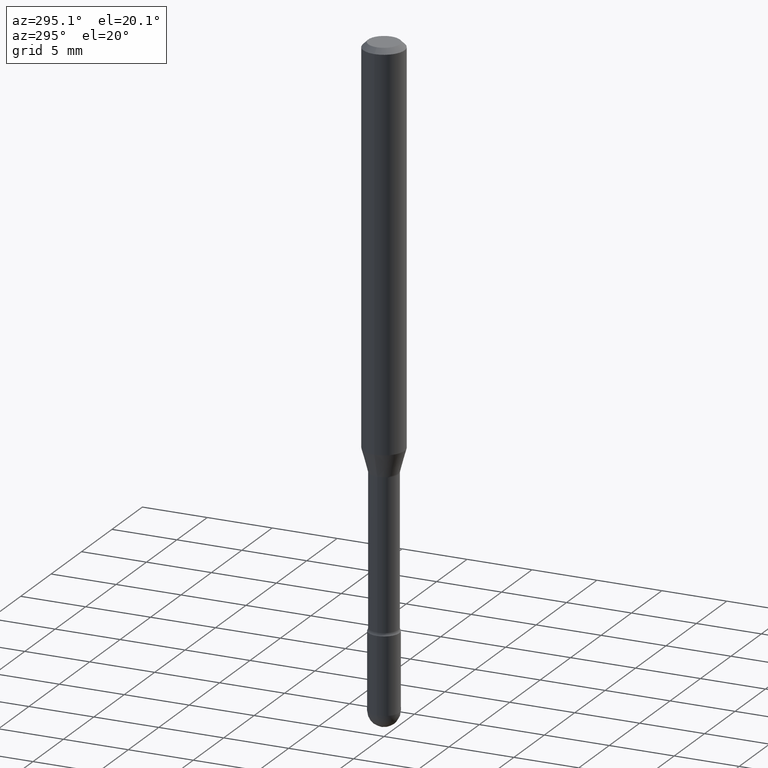
[diagram: clean part render]
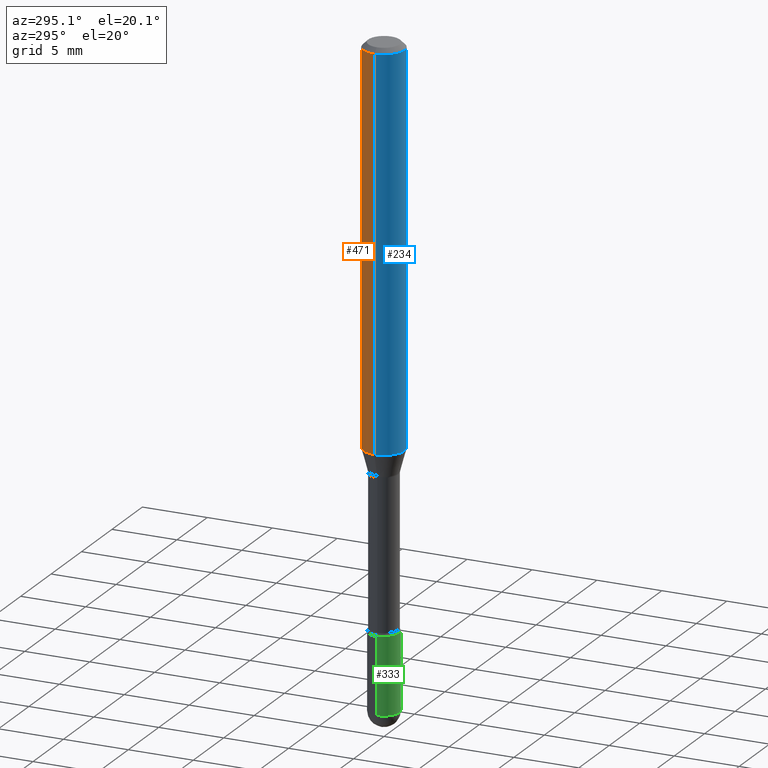
[diagram: same view with three faces highlighted in distinct colors, each labeled with its STEP entity id]
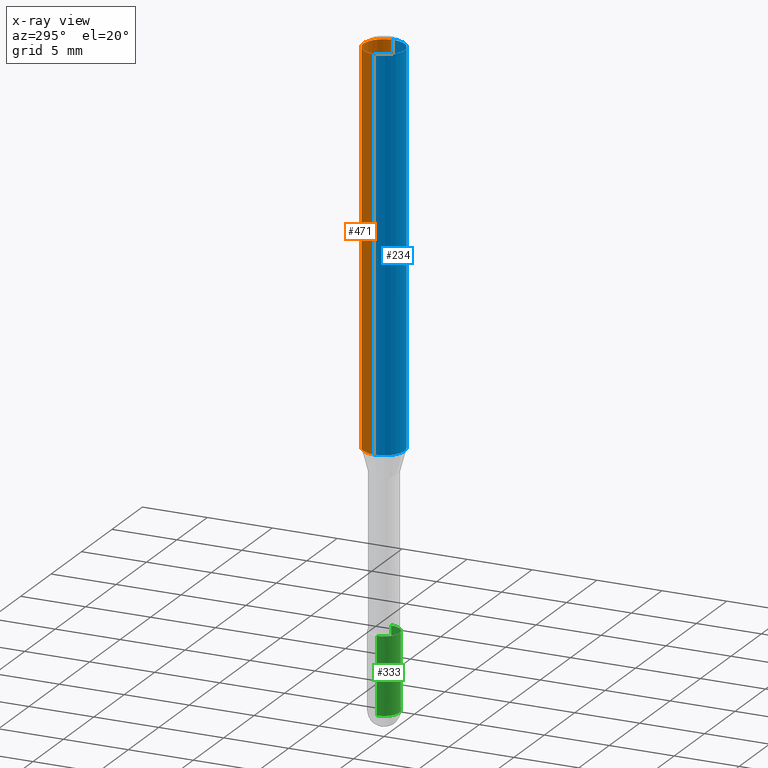
[diagram: x-ray of the same camera — body ghosted, the three highlighted faces saturated]
A machine part, auxiliary view with three faces highlighted in distinct colors.
The next image is the same camera in x-ray (body ghosted, the three faces saturated) — at least one of them is partly hidden behind the body in this view.
Their STEP definitions:

[orange] entity #471 — the highlighted cylindrical surface (edge-blend (fillet) strip) has radius 1.5875 mm, axis along (-0, 0, 1).
#21 = DIRECTION ( 'NONE',  ( -2.445468806185136597E-29, 3.491481338843145583E-15, 1.000000000000000000 ) ) ;
#24 = CARTESIAN_POINT ( 'NONE',  ( -0.06250000000000000000, -3.696240099632393448E-15, -1.185837444817705144 ) ) ;
#37 = CARTESIAN_POINT ( 'NONE',  ( 0.06250000000000000000, -4.888073874380391431E-16, -0.01500000000000008271 ) ) ;
#50 = FACE_OUTER_BOUND ( 'NONE', #131, .T. ) ;
#57 = CARTESIAN_POINT ( 'NONE',  ( 3.668203209277725232E-31, -5.237222008264747365E-17, -0.01500000000000008271 ) ) ;
#59 = CARTESIAN_POINT ( 'NONE',  ( -0.06250000000000000000, 4.440892098500642925E-16, 4.780733988912429571E-16 ) ) ;
#60 = VECTOR ( 'NONE', #260, 39.37007874015748143 ) ;
#94 = VERTEX_POINT ( 'NONE', #544 ) ;
#95 = DIRECTION ( 'NONE',  ( -2.445468806185136597E-29, 3.491481338843145583E-15, 1.000000000000000000 ) ) ;
#100 = ORIENTED_EDGE ( 'NONE', *, *, #314, .T. ) ;
#129 = DIRECTION ( 'NONE',  ( -2.445468806185136597E-29, 3.491481338843145583E-15, 1.000000000000000000 ) ) ;
#131 = EDGE_LOOP ( 'NONE', ( #167, #100, #221, #486 ) ) ;
#159 = AXIS2_PLACEMENT_3D ( 'NONE', #526, #129, #351 ) ;
#167 = ORIENTED_EDGE ( 'NONE', *, *, #331, .T. ) ;
#199 = CARTESIAN_POINT ( 'NONE',  ( 0.06250000000000000000, -4.364351673553899931E-16, 4.780733988912490708E-16 ) ) ;
#221 = ORIENTED_EDGE ( 'NONE', *, *, #457, .F. ) ;
#240 = DIRECTION ( 'NONE',  ( -2.445468806185136877E-29, 3.491481338843145188E-15, 1.000000000000000000 ) ) ;
#242 = AXIS2_PLACEMENT_3D ( 'NONE', #57, #21, #490 ) ;
#259 = VERTEX_POINT ( 'NONE', #37 ) ;
#260 = DIRECTION ( 'NONE',  ( -2.445468806185136877E-29, 3.491481338843145188E-15, 1.000000000000000000 ) ) ;
#262 = DIRECTION ( 'NONE',  ( 1.000000000000000000, -6.982962677686266711E-15, 4.852736867747366207E-29 ) ) ;
#314 = EDGE_CURVE ( 'NONE', #398, #94, #448, .T. ) ;
#331 = EDGE_CURVE ( 'NONE', #368, #398, #411, .T. ) ;
#345 = EDGE_CURVE ( 'NONE', #368, #259, #365, .T. ) ;
#351 = DIRECTION ( 'NONE',  ( 1.000000000000000000, -6.982962677686262766E-15, 0.000000000000000000 ) ) ;
#365 = LINE ( 'NONE', #199, #454 ) ;
#368 = VERTEX_POINT ( 'NONE', #504 ) ;
#398 = VERTEX_POINT ( 'NONE', #24 ) ;
#409 = CYLINDRICAL_SURFACE ( 'NONE', #488, 0.06250000000000000000 ) ;
#411 = CIRCLE ( 'NONE', #159, 0.06250000000000000000 ) ;
#448 = LINE ( 'NONE', #59, #60 ) ;
#454 = VECTOR ( 'NONE', #240, 39.37007874015748143 ) ;
#457 = EDGE_CURVE ( 'NONE', #259, #94, #468, .T. ) ;
#468 = CIRCLE ( 'NONE', #242, 0.06250000000000000000 ) ;
#471 = ADVANCED_FACE ( 'NONE', ( #50 ), #409, .T. ) ;
#481 = CARTESIAN_POINT ( 'NONE',  ( -1.169113584055446105E-44, 1.669184350826100908E-30, 4.780733988912460139E-16 ) ) ;
#486 = ORIENTED_EDGE ( 'NONE', *, *, #345, .F. ) ;
#488 = AXIS2_PLACEMENT_3D ( 'NONE', #481, #95, #262 ) ;
#490 = DIRECTION ( 'NONE',  ( 1.000000000000000000, -6.982962677686266711E-15, 0.000000000000000000 ) ) ;
#504 = CARTESIAN_POINT ( 'NONE',  ( 0.06250000000000000000, -4.576764476837847734E-15, -1.185837444817705144 ) ) ;
#526 = CARTESIAN_POINT ( 'NONE',  ( 2.899928480507986581E-29, -4.140329309482456065E-15, -1.185837444817705144 ) ) ;
#544 = CARTESIAN_POINT ( 'NONE',  ( -0.06250000000000000000, -1.652261554932489547E-15, -0.01500000000000008271 ) ) ;

[blue] entity #234 — the highlighted cylindrical surface (edge-blend (fillet) strip) has radius 1.5875 mm, axis along (-0, 0, 1).
#12 = DIRECTION ( 'NONE',  ( -2.445468806185136597E-29, 3.491481338843145583E-15, 1.000000000000000000 ) ) ;
#24 = CARTESIAN_POINT ( 'NONE',  ( -0.06250000000000000000, -3.696240099632393448E-15, -1.185837444817705144 ) ) ;
#37 = CARTESIAN_POINT ( 'NONE',  ( 0.06250000000000000000, -4.888073874380391431E-16, -0.01500000000000008271 ) ) ;
#59 = CARTESIAN_POINT ( 'NONE',  ( -0.06250000000000000000, 4.440892098500642925E-16, 4.780733988912429571E-16 ) ) ;
#60 = VECTOR ( 'NONE', #260, 39.37007874015748143 ) ;
#81 = CYLINDRICAL_SURFACE ( 'NONE', #215, 0.06250000000000000000 ) ;
#82 = EDGE_LOOP ( 'NONE', ( #236, #220, #566, #422 ) ) ;
#94 = VERTEX_POINT ( 'NONE', #544 ) ;
#108 = DIRECTION ( 'NONE',  ( -2.445468806185136597E-29, 3.491481338843145583E-15, 1.000000000000000000 ) ) ;
#119 = CARTESIAN_POINT ( 'NONE',  ( -1.169113584055446105E-44, 1.669184350826100908E-30, 4.780733988912460139E-16 ) ) ;
#128 = CIRCLE ( 'NONE', #347, 0.06250000000000000000 ) ;
#155 = DIRECTION ( 'NONE',  ( 1.000000000000000000, -6.982962677686262766E-15, 0.000000000000000000 ) ) ;
#182 = DIRECTION ( 'NONE',  ( 1.000000000000000000, -6.982962677686266711E-15, 0.000000000000000000 ) ) ;
#199 = CARTESIAN_POINT ( 'NONE',  ( 0.06250000000000000000, -4.364351673553899931E-16, 4.780733988912490708E-16 ) ) ;
#215 = AXIS2_PLACEMENT_3D ( 'NONE', #119, #293, #469 ) ;
#220 = ORIENTED_EDGE ( 'NONE', *, *, #354, .T. ) ;
#234 = ADVANCED_FACE ( 'NONE', ( #507 ), #81, .T. ) ;
#236 = ORIENTED_EDGE ( 'NONE', *, *, #314, .F. ) ;
#240 = DIRECTION ( 'NONE',  ( -2.445468806185136877E-29, 3.491481338843145188E-15, 1.000000000000000000 ) ) ;
#259 = VERTEX_POINT ( 'NONE', #37 ) ;
#260 = DIRECTION ( 'NONE',  ( -2.445468806185136877E-29, 3.491481338843145188E-15, 1.000000000000000000 ) ) ;
#293 = DIRECTION ( 'NONE',  ( -2.445468806185136597E-29, 3.491481338843145583E-15, 1.000000000000000000 ) ) ;
#314 = EDGE_CURVE ( 'NONE', #398, #94, #448, .T. ) ;
#332 = EDGE_CURVE ( 'NONE', #94, #259, #128, .T. ) ;
#341 = AXIS2_PLACEMENT_3D ( 'NONE', #543, #108, #155 ) ;
#345 = EDGE_CURVE ( 'NONE', #368, #259, #365, .T. ) ;
#347 = AXIS2_PLACEMENT_3D ( 'NONE', #407, #12, #182 ) ;
#354 = EDGE_CURVE ( 'NONE', #398, #368, #356, .T. ) ;
#356 = CIRCLE ( 'NONE', #341, 0.06250000000000000000 ) ;
#365 = LINE ( 'NONE', #199, #454 ) ;
#368 = VERTEX_POINT ( 'NONE', #504 ) ;
#398 = VERTEX_POINT ( 'NONE', #24 ) ;
#407 = CARTESIAN_POINT ( 'NONE',  ( 3.668203209277725232E-31, -5.237222008264747365E-17, -0.01500000000000008271 ) ) ;
#422 = ORIENTED_EDGE ( 'NONE', *, *, #332, .F. ) ;
#448 = LINE ( 'NONE', #59, #60 ) ;
#454 = VECTOR ( 'NONE', #240, 39.37007874015748143 ) ;
#469 = DIRECTION ( 'NONE',  ( 1.000000000000000000, -6.982962677686266711E-15, 4.852736867747366207E-29 ) ) ;
#504 = CARTESIAN_POINT ( 'NONE',  ( 0.06250000000000000000, -4.576764476837847734E-15, -1.185837444817705144 ) ) ;
#507 = FACE_OUTER_BOUND ( 'NONE', #82, .T. ) ;
#543 = CARTESIAN_POINT ( 'NONE',  ( 2.899928480507986581E-29, -4.140329309482456065E-15, -1.185837444817705144 ) ) ;
#544 = CARTESIAN_POINT ( 'NONE',  ( -0.06250000000000000000, -1.652261554932489547E-15, -0.01500000000000008271 ) ) ;
#566 = ORIENTED_EDGE ( 'NONE', *, *, #345, .T. ) ;

[green] entity #333 — the highlighted cylindrical surface (edge-blend (fillet) strip) has radius 1.1811 mm, axis along (-0, 0, 1).
#17 = VECTOR ( 'NONE', #213, 39.37007874015748143 ) ;
#30 = CARTESIAN_POINT ( 'NONE',  ( -0.04649999999999999967, -6.084321717661122786E-15, -1.721000000000000085 ) ) ;
#41 = LINE ( 'NONE', #115, #17 ) ;
#45 = CARTESIAN_POINT ( 'NONE',  ( 4.777223312882664517E-29, -6.820608795430085022E-15, -1.953500000000000014 ) ) ;
#46 = ORIENTED_EDGE ( 'NONE', *, *, #134, .T. ) ;
#78 = DIRECTION ( 'NONE',  ( -2.445468806185136597E-29, 3.491481338843145583E-15, 1.000000000000000000 ) ) ;
#86 = DIRECTION ( 'NONE',  ( 1.000000000000000000, -6.982962677686260400E-15, 0.000000000000000000 ) ) ;
#91 = CIRCLE ( 'NONE', #506, 0.04649999999999999967 ) ;
#109 = CIRCLE ( 'NONE', #370, 0.04649999999999999967 ) ;
#115 = CARTESIAN_POINT ( 'NONE',  ( 0.04649999999999999967, -3.247077645124114474E-16, 2.267422200745110326E-30 ) ) ;
#122 = CARTESIAN_POINT ( 'NONE',  ( 4.777223312882664517E-29, -6.820608795430085022E-15, -1.953500000000000014 ) ) ;
#134 = EDGE_CURVE ( 'NONE', #261, #499, #214, .T. ) ;
#136 = CYLINDRICAL_SURFACE ( 'NONE', #509, 0.04649999999999999967 ) ;
#141 = EDGE_LOOP ( 'NONE', ( #459, #46, #527, #218, #268 ) ) ;
#156 = EDGE_CURVE ( 'NONE', #261, #419, #340, .T. ) ;
#172 = EDGE_CURVE ( 'NONE', #419, #520, #109, .T. ) ;
#180 = EDGE_CURVE ( 'NONE', #499, #374, #91, .T. ) ;
#213 = DIRECTION ( 'NONE',  ( -2.445468806185136877E-29, 3.491481338843145188E-15, 1.000000000000000000 ) ) ;
#214 = CIRCLE ( 'NONE', #508, 0.04649999999999999967 ) ;
#218 = ORIENTED_EDGE ( 'NONE', *, *, #557, .T. ) ;
#227 = CARTESIAN_POINT ( 'NONE',  ( -3.304023721283985622E-16, -0.04650000000000679978, -1.953499999999999792 ) ) ;
#256 = DIRECTION ( 'NONE',  ( -2.445468806185136597E-29, 3.491481338843145583E-15, 1.000000000000000000 ) ) ;
#261 = VERTEX_POINT ( 'NONE', #342 ) ;
#266 = CARTESIAN_POINT ( 'NONE',  ( 0.04649999999999999967, -6.333547148661465016E-15, -1.721000000000000085 ) ) ;
#268 = ORIENTED_EDGE ( 'NONE', *, *, #172, .F. ) ;
#294 = VECTOR ( 'NONE', #564, 39.37007874015748143 ) ;
#300 = DIRECTION ( 'NONE',  ( 1.000000000000000000, -6.982962677686260400E-15, 0.000000000000000000 ) ) ;
#333 = ADVANCED_FACE ( 'NONE', ( #530 ), #136, .T. ) ;
#340 = LINE ( 'NONE', #559, #294 ) ;
#342 = CARTESIAN_POINT ( 'NONE',  ( -0.04649999999999999967, -6.084321717661123574E-15, -1.953500000000000014 ) ) ;
#370 = AXIS2_PLACEMENT_3D ( 'NONE', #512, #510, #300 ) ;
#374 = VERTEX_POINT ( 'NONE', #501 ) ;
#376 = DIRECTION ( 'NONE',  ( -2.445468806185136597E-29, 3.491481338843145583E-15, 1.000000000000000000 ) ) ;
#417 = DIRECTION ( 'NONE',  ( 1.000000000000000000, -6.982962677686267499E-15, 4.876176775795936353E-29 ) ) ;
#419 = VERTEX_POINT ( 'NONE', #30 ) ;
#438 = DIRECTION ( 'NONE',  ( 1.000000000000000000, -6.982962677686260400E-15, 0.000000000000000000 ) ) ;
#458 = CARTESIAN_POINT ( 'NONE',  ( 0.000000000000000000, 0.000000000000000000, 0.000000000000000000 ) ) ;
#459 = ORIENTED_EDGE ( 'NONE', *, *, #156, .F. ) ;
#499 = VERTEX_POINT ( 'NONE', #227 ) ;
#501 = CARTESIAN_POINT ( 'NONE',  ( 0.04649999999999999967, -6.739431854301981557E-15, -1.953500000000000014 ) ) ;
#506 = AXIS2_PLACEMENT_3D ( 'NONE', #45, #256, #86 ) ;
#508 = AXIS2_PLACEMENT_3D ( 'NONE', #122, #78, #438 ) ;
#509 = AXIS2_PLACEMENT_3D ( 'NONE', #458, #376, #417 ) ;
#510 = DIRECTION ( 'NONE',  ( -2.445468806185136597E-29, 3.491481338843145583E-15, 1.000000000000000000 ) ) ;
#512 = CARTESIAN_POINT ( 'NONE',  ( 4.208651815444620572E-29, -6.008839384149054309E-15, -1.721000000000000085 ) ) ;
#520 = VERTEX_POINT ( 'NONE', #266 ) ;
#527 = ORIENTED_EDGE ( 'NONE', *, *, #180, .T. ) ;
#530 = FACE_OUTER_BOUND ( 'NONE', #141, .T. ) ;
#557 = EDGE_CURVE ( 'NONE', #374, #520, #41, .T. ) ;
#559 = CARTESIAN_POINT ( 'NONE',  ( -0.04649999999999999967, 3.304023721284465841E-16, -2.287304816968531530E-30 ) ) ;
#564 = DIRECTION ( 'NONE',  ( -2.445468806185136877E-29, 3.491481338843145188E-15, 1.000000000000000000 ) ) ;